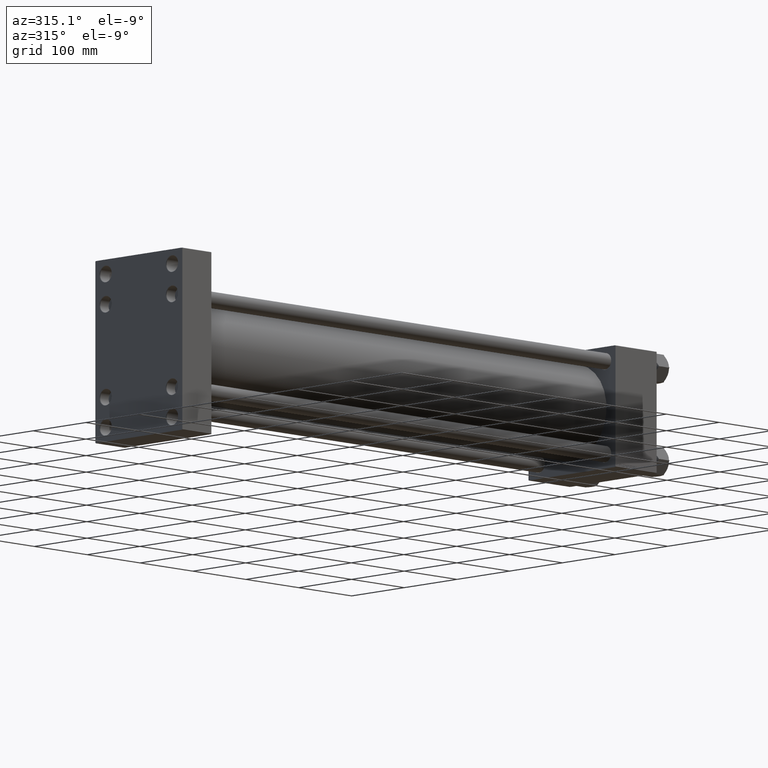
[diagram: clean part render]
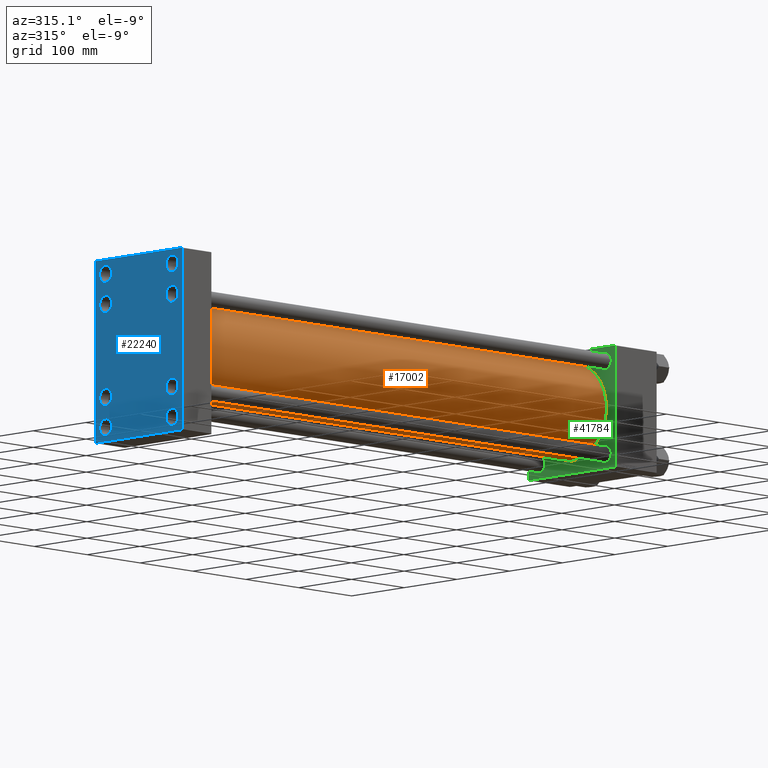
[diagram: same view with three faces highlighted in distinct colors, each labeled with its STEP entity id]
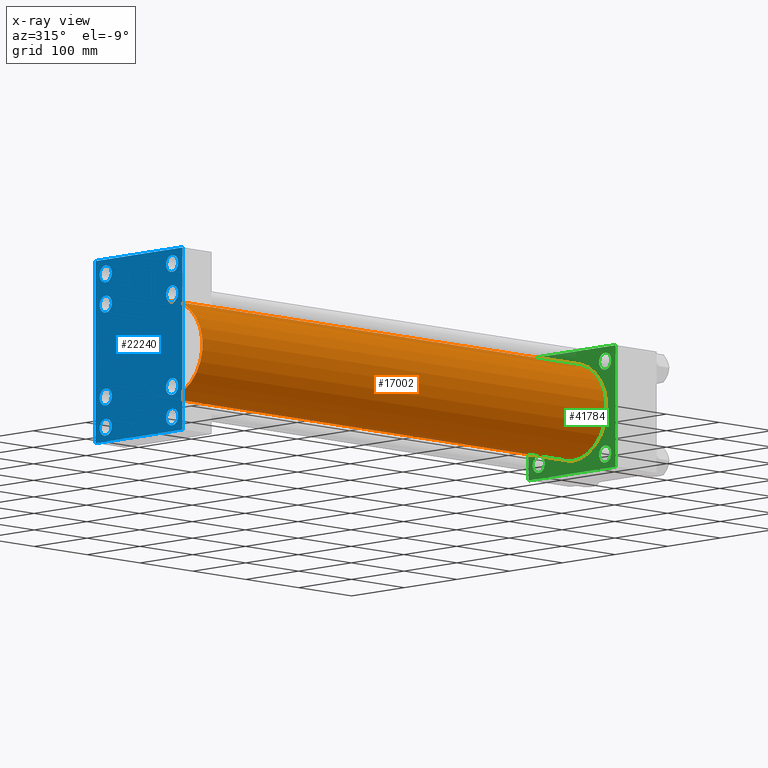
[diagram: x-ray of the same camera — body ghosted, the three highlighted faces saturated]
A machine part, auxiliary view with three faces highlighted in distinct colors.
The next image is the same camera in x-ray (body ghosted, the three faces saturated) — at least one of them is partly hidden behind the body in this view.
Their STEP definitions:

[orange] entity #17002 — the highlighted cylindrical surface (partial cylindrical patch) has radius 65.5 mm, axis along (-1, -0, -0).
#427 = CIRCLE ( 'NONE', #22564, 65.50000000000001421 ) ;
#3368 = EDGE_CURVE ( 'NONE', #4917, #25376, #31878, .T. ) ;
#4917 = VERTEX_POINT ( 'NONE', #19867 ) ;
#6007 = ORIENTED_EDGE ( 'NONE', *, *, #3368, .T. ) ;
#9825 = CARTESIAN_POINT ( 'NONE',  ( 55.00000000000004974, 5.419351320449954973E-15, -65.50000000000001421 ) ) ;
#9829 = ORIENTED_EDGE ( 'NONE', *, *, #45280, .F. ) ;
#9952 = DIRECTION ( 'NONE',  ( 0.000000000000000000, 0.000000000000000000, 1.000000000000000000 ) ) ;
#11100 = VECTOR ( 'NONE', #22832, 1000.000000000000000 ) ;
#11320 = DIRECTION ( 'NONE',  ( -1.000000000000000000, -0.000000000000000000, -0.000000000000000000 ) ) ;
#14198 = CARTESIAN_POINT ( 'NONE',  ( 819.0000000000001137, -2.602085213965210642E-15, 0.000000000000000000 ) ) ;
#17002 = ADVANCED_FACE ( 'NONE', ( #42652 ), #34428, .T. ) ;
#17794 = CARTESIAN_POINT ( 'NONE',  ( 819.0000000000001137, 5.419351320449954973E-15, -65.50000000000001421 ) ) ;
#17901 = EDGE_CURVE ( 'NONE', #4917, #37485, #427, .T. ) ;
#19867 = CARTESIAN_POINT ( 'NONE',  ( 819.0000000000001137, -2.602085213965210642E-15, 65.50000000000001421 ) ) ;
#20721 = ORIENTED_EDGE ( 'NONE', *, *, #42044, .T. ) ;
#22462 = DIRECTION ( 'NONE',  ( 0.000000000000000000, 0.000000000000000000, 1.000000000000000000 ) ) ;
#22564 = AXIS2_PLACEMENT_3D ( 'NONE', #43548, #39572, #47015 ) ;
#22832 = DIRECTION ( 'NONE',  ( -1.000000000000000000, -0.000000000000000000, -0.000000000000000000 ) ) ;
#23215 = CARTESIAN_POINT ( 'NONE',  ( 819.0000000000001137, 5.419351320449954973E-15, -65.50000000000001421 ) ) ;
#23362 = ORIENTED_EDGE ( 'NONE', *, *, #17901, .F. ) ;
#24205 = AXIS2_PLACEMENT_3D ( 'NONE', #14198, #46399, #9952 ) ;
#24311 = CIRCLE ( 'NONE', #48088, 65.50000000000001421 ) ;
#25376 = VERTEX_POINT ( 'NONE', #51143 ) ;
#28209 = VERTEX_POINT ( 'NONE', #9825 ) ;
#29655 = CARTESIAN_POINT ( 'NONE',  ( 55.00000000000004974, -2.602085213965210642E-15, 0.000000000000000000 ) ) ;
#31498 = EDGE_LOOP ( 'NONE', ( #9829, #23362, #6007, #20721 ) ) ;
#31878 = LINE ( 'NONE', #48103, #11100 ) ;
#34428 = CYLINDRICAL_SURFACE ( 'NONE', #24205, 65.50000000000001421 ) ;
#37485 = VERTEX_POINT ( 'NONE', #23215 ) ;
#39256 = LINE ( 'NONE', #17794, #46485 ) ;
#39572 = DIRECTION ( 'NONE',  ( 1.000000000000000000, 0.000000000000000000, 0.000000000000000000 ) ) ;
#42044 = EDGE_CURVE ( 'NONE', #25376, #28209, #24311, .T. ) ;
#42652 = FACE_OUTER_BOUND ( 'NONE', #31498, .T. ) ;
#43548 = CARTESIAN_POINT ( 'NONE',  ( 819.0000000000001137, -2.602085213965210642E-15, 0.000000000000000000 ) ) ;
#45280 = EDGE_CURVE ( 'NONE', #37485, #28209, #39256, .T. ) ;
#46399 = DIRECTION ( 'NONE',  ( -1.000000000000000000, -0.000000000000000000, -0.000000000000000000 ) ) ;
#46485 = VECTOR ( 'NONE', #11320, 1000.000000000000000 ) ;
#47015 = DIRECTION ( 'NONE',  ( 0.000000000000000000, 0.000000000000000000, -1.000000000000000000 ) ) ;
#48088 = AXIS2_PLACEMENT_3D ( 'NONE', #29655, #50404, #22462 ) ;
#48103 = CARTESIAN_POINT ( 'NONE',  ( 819.0000000000001137, -2.602085213965210642E-15, 65.50000000000001421 ) ) ;
#50404 = DIRECTION ( 'NONE',  ( 1.000000000000000000, -0.000000000000000000, 0.000000000000000000 ) ) ;
#51143 = CARTESIAN_POINT ( 'NONE',  ( 55.00000000000004974, -2.602085213965210642E-15, 65.50000000000001421 ) ) ;

[blue] entity #22240 — the highlighted planar face has unit normal (-1, 0, 0).
#639 = CARTESIAN_POINT ( 'NONE',  ( 0.000000000000000000, -63.00000000000002842, -115.4999999999999432 ) ) ;
#937 = EDGE_CURVE ( 'NONE', #40638, #21530, #25623, .T. ) ;
#1044 = EDGE_CURVE ( 'NONE', #20717, #40638, #20188, .T. ) ;
#1060 = DIRECTION ( 'NONE',  ( 1.000000000000000000, -0.000000000000000000, 0.000000000000000000 ) ) ;
#1153 = CIRCLE ( 'NONE', #47942, 11.49999999999995381 ) ;
#1301 = LINE ( 'NONE', #45474, #33417 ) ;
#1453 = DIRECTION ( 'NONE',  ( 1.000000000000000000, -0.000000000000000000, 0.000000000000000000 ) ) ;
#2074 = VERTEX_POINT ( 'NONE', #5888 ) ;
#2497 = EDGE_CURVE ( 'NONE', #36494, #29167, #40787, .T. ) ;
#3077 = LINE ( 'NONE', #31829, #5585 ) ;
#3177 = CARTESIAN_POINT ( 'NONE',  ( 0.000000000000000000, 62.99999999999998579, -103.9999999999999858 ) ) ;
#3527 = AXIS2_PLACEMENT_3D ( 'NONE', #9270, #5552, #16989 ) ;
#3604 = FACE_BOUND ( 'NONE', #45450, .T. ) ;
#4085 = DIRECTION ( 'NONE',  ( 1.000000000000000000, -0.000000000000000000, 0.000000000000000000 ) ) ;
#4604 = DIRECTION ( 'NONE',  ( 0.000000000000000000, 0.000000000000000000, 1.000000000000000000 ) ) ;
#4670 = CARTESIAN_POINT ( 'NONE',  ( 0.000000000000000000, 82.50000000000001421, 123.5000000000000284 ) ) ;
#4686 = ORIENTED_EDGE ( 'NONE', *, *, #10097, .T. ) ;
#5382 = CARTESIAN_POINT ( 'NONE',  ( 0.000000000000000000, 62.95000000000000284, -51.44999999999996732 ) ) ;
#5401 = DIRECTION ( 'NONE',  ( 0.000000000000000000, -1.000000000000000000, -1.682156097916903834E-16 ) ) ;
#5493 = EDGE_LOOP ( 'NONE', ( #51556, #22987 ) ) ;
#5552 = DIRECTION ( 'NONE',  ( 1.000000000000000000, -0.000000000000000000, 0.000000000000000000 ) ) ;
#5585 = VECTOR ( 'NONE', #11602, 1000.000000000000000 ) ;
#5888 = CARTESIAN_POINT ( 'NONE',  ( 0.000000000000000000, -63.00000000000002842, -92.50000000000002842 ) ) ;
#6137 = EDGE_CURVE ( 'NONE', #26890, #2074, #17971, .T. ) ;
#6234 = CIRCLE ( 'NONE', #7072, 11.50000000000003730 ) ;
#6366 = DIRECTION ( 'NONE',  ( 1.000000000000000000, -0.000000000000000000, 0.000000000000000000 ) ) ;
#6650 = CIRCLE ( 'NONE', #50823, 11.50000000000003730 ) ;
#6710 = VERTEX_POINT ( 'NONE', #52625 ) ;
#6738 = ORIENTED_EDGE ( 'NONE', *, *, #24462, .F. ) ;
#6938 = DIRECTION ( 'NONE',  ( 0.000000000000000000, 0.000000000000000000, 1.000000000000000000 ) ) ;
#6991 = ORIENTED_EDGE ( 'NONE', *, *, #50077, .T. ) ;
#7072 = AXIS2_PLACEMENT_3D ( 'NONE', #32017, #20294, #24034 ) ;
#7495 = AXIS2_PLACEMENT_3D ( 'NONE', #48523, #4085, #4604 ) ;
#8309 = CIRCLE ( 'NONE', #33787, 11.49999999999995381 ) ;
#9262 = EDGE_LOOP ( 'NONE', ( #41092, #6991 ) ) ;
#9270 = CARTESIAN_POINT ( 'NONE',  ( 0.000000000000000000, -63.00000000000002842, -103.9999999999999858 ) ) ;
#9646 = ORIENTED_EDGE ( 'NONE', *, *, #32894, .T. ) ;
#9701 = CARTESIAN_POINT ( 'NONE',  ( 0.000000000000000000, -62.94999999999998153, -51.44999999999998153 ) ) ;
#9736 = DIRECTION ( 'NONE',  ( 1.000000000000000000, -0.000000000000000000, 0.000000000000000000 ) ) ;
#10097 = EDGE_CURVE ( 'NONE', #39812, #10649, #1301, .T. ) ;
#10394 = EDGE_LOOP ( 'NONE', ( #43292, #9646 ) ) ;
#10649 = VERTEX_POINT ( 'NONE', #30133 ) ;
#10824 = AXIS2_PLACEMENT_3D ( 'NONE', #15065, #27312, #44055 ) ;
#11075 = FACE_BOUND ( 'NONE', #43809, .T. ) ;
#11153 = CARTESIAN_POINT ( 'NONE',  ( 0.000000000000000000, 62.95000000000000284, 74.44999999999998863 ) ) ;
#11602 = DIRECTION ( 'NONE',  ( 0.000000000000000000, 0.7071067811865672237, -0.7071067811865279218 ) ) ;
#12265 = AXIS2_PLACEMENT_3D ( 'NONE', #23434, #32192, #6938 ) ;
#12371 = CARTESIAN_POINT ( 'NONE',  ( 0.000000000000000000, 62.99999999999998579, -92.50000000000002842 ) ) ;
#12716 = AXIS2_PLACEMENT_3D ( 'NONE', #32832, #25641, #41332 ) ;
#12783 = CARTESIAN_POINT ( 'NONE',  ( 0.000000000000000000, -63.00000000000002842, 104.0000000000000142 ) ) ;
#13346 = ORIENTED_EDGE ( 'NONE', *, *, #25125, .T. ) ;
#14020 = CIRCLE ( 'NONE', #51386, 11.50000000000003730 ) ;
#14945 = CARTESIAN_POINT ( 'NONE',  ( 0.000000000000000000, -82.49999999999998579, 123.5000000000000000 ) ) ;
#15065 = CARTESIAN_POINT ( 'NONE',  ( 0.000000000000000000, 0.000000000000000000, 0.000000000000000000 ) ) ;
#15069 = EDGE_CURVE ( 'NONE', #2074, #26890, #1153, .T. ) ;
#15111 = AXIS2_PLACEMENT_3D ( 'NONE', #3177, #19421, #39901 ) ;
#15808 = EDGE_CURVE ( 'NONE', #32725, #37286, #40297, .T. ) ;
#15941 = CARTESIAN_POINT ( 'NONE',  ( 0.000000000000000000, 102.7500000000000142, -102.7500000000000142 ) ) ;
#16079 = VECTOR ( 'NONE', #5401, 1000.000000000000000 ) ;
#16184 = CIRCLE ( 'NONE', #20434, 11.49999999999995381 ) ;
#16195 = DIRECTION ( 'NONE',  ( 1.000000000000000000, -0.000000000000000000, 0.000000000000000000 ) ) ;
#16629 = EDGE_CURVE ( 'NONE', #45343, #40943, #46257, .T. ) ;
#16811 = VECTOR ( 'NONE', #37380, 1000.000000000000000 ) ;
#16930 = DIRECTION ( 'NONE',  ( 1.000000000000000000, -0.000000000000000000, 0.000000000000000000 ) ) ;
#16989 = DIRECTION ( 'NONE',  ( 0.000000000000000000, 0.000000000000000000, 1.000000000000000000 ) ) ;
#17314 = AXIS2_PLACEMENT_3D ( 'NONE', #21436, #17451, #29684 ) ;
#17441 = CARTESIAN_POINT ( 'NONE',  ( 0.000000000000000000, 62.95000000000000284, -62.95000000000000284 ) ) ;
#17451 = DIRECTION ( 'NONE',  ( 1.000000000000000000, -0.000000000000000000, 0.000000000000000000 ) ) ;
#17717 = EDGE_CURVE ( 'NONE', #6710, #26703, #14020, .T. ) ;
#17839 = EDGE_CURVE ( 'NONE', #43264, #20717, #49699, .T. ) ;
#17971 = CIRCLE ( 'NONE', #3527, 11.49999999999995381 ) ;
#18237 = ORIENTED_EDGE ( 'NONE', *, *, #937, .T. ) ;
#18420 = LINE ( 'NONE', #14945, #25329 ) ;
#18437 = EDGE_CURVE ( 'NONE', #21530, #19627, #50889, .T. ) ;
#19331 = CIRCLE ( 'NONE', #37164, 11.50000000000003730 ) ;
#19366 = AXIS2_PLACEMENT_3D ( 'NONE', #39634, #34590, #43085 ) ;
#19421 = DIRECTION ( 'NONE',  ( 1.000000000000000000, -0.000000000000000000, 0.000000000000000000 ) ) ;
#19627 = VERTEX_POINT ( 'NONE', #39715 ) ;
#19850 = FACE_OUTER_BOUND ( 'NONE', #25774, .T. ) ;
#19953 = EDGE_LOOP ( 'NONE', ( #50531, #48879 ) ) ;
#19984 = VECTOR ( 'NONE', #45697, 1000.000000000000000 ) ;
#20020 = AXIS2_PLACEMENT_3D ( 'NONE', #39076, #6366, #22321 ) ;
#20188 = LINE ( 'NONE', #15941, #28875 ) ;
#20294 = DIRECTION ( 'NONE',  ( 1.000000000000000000, -0.000000000000000000, 0.000000000000000000 ) ) ;
#20434 = AXIS2_PLACEMENT_3D ( 'NONE', #42212, #45412, #26003 ) ;
#20717 = VERTEX_POINT ( 'NONE', #27562 ) ;
#21016 = DIRECTION ( 'NONE',  ( -0.000000000000000000, 0.7071067811865279218, 0.7071067811865672237 ) ) ;
#21436 = CARTESIAN_POINT ( 'NONE',  ( 0.000000000000000000, 62.99999999999998579, -103.9999999999999858 ) ) ;
#21530 = VERTEX_POINT ( 'NONE', #37098 ) ;
#22240 = ADVANCED_FACE ( 'NONE', ( #40063, #3604, #47790, #26789, #11075, #35023, #22789, #31306, #19850 ), #36072, .T. ) ;
#22321 = DIRECTION ( 'NONE',  ( 0.000000000000000000, 0.000000000000000000, 1.000000000000000000 ) ) ;
#22789 = FACE_BOUND ( 'NONE', #19953, .T. ) ;
#22987 = ORIENTED_EDGE ( 'NONE', *, *, #6137, .T. ) ;
#23049 = CARTESIAN_POINT ( 'NONE',  ( 0.000000000000000000, -62.94999999999998153, 74.45000000000005969 ) ) ;
#23434 = CARTESIAN_POINT ( 'NONE',  ( 0.000000000000000000, -63.00000000000002842, 104.0000000000000142 ) ) ;
#24034 = DIRECTION ( 'NONE',  ( 0.000000000000000000, 0.000000000000000000, 1.000000000000000000 ) ) ;
#24212 = EDGE_LOOP ( 'NONE', ( #48752, #35731 ) ) ;
#24291 = DIRECTION ( 'NONE',  ( 1.000000000000000000, -0.000000000000000000, 0.000000000000000000 ) ) ;
#24462 = EDGE_CURVE ( 'NONE', #39812, #19627, #18420, .T. ) ;
#24923 = EDGE_CURVE ( 'NONE', #42610, #34487, #6650, .T. ) ;
#25125 = EDGE_CURVE ( 'NONE', #26703, #6710, #30423, .T. ) ;
#25329 = VECTOR ( 'NONE', #39162, 1000.000000000000000 ) ;
#25442 = DIRECTION ( 'NONE',  ( 0.000000000000000000, 0.000000000000000000, 1.000000000000000000 ) ) ;
#25623 = LINE ( 'NONE', #46631, #16079 ) ;
#25641 = DIRECTION ( 'NONE',  ( 1.000000000000000000, -0.000000000000000000, 0.000000000000000000 ) ) ;
#25746 = VERTEX_POINT ( 'NONE', #46471 ) ;
#25774 = EDGE_LOOP ( 'NONE', ( #29840, #43566, #18237, #28214, #6738, #4686, #30214, #31992 ) ) ;
#25915 = VERTEX_POINT ( 'NONE', #12371 ) ;
#26003 = DIRECTION ( 'NONE',  ( 0.000000000000000000, 0.000000000000000000, 1.000000000000000000 ) ) ;
#26672 = EDGE_CURVE ( 'NONE', #45875, #41896, #16184, .T. ) ;
#26703 = VERTEX_POINT ( 'NONE', #23049 ) ;
#26789 = FACE_BOUND ( 'NONE', #24212, .T. ) ;
#26890 = VERTEX_POINT ( 'NONE', #639 ) ;
#27024 = CARTESIAN_POINT ( 'NONE',  ( 0.000000000000000000, -63.00000000000002842, 92.50000000000005684 ) ) ;
#27102 = EDGE_LOOP ( 'NONE', ( #48351, #48186 ) ) ;
#27312 = DIRECTION ( 'NONE',  ( -1.000000000000000000, 0.000000000000000000, -0.000000000000000000 ) ) ;
#27562 = CARTESIAN_POINT ( 'NONE',  ( 0.000000000000000000, 82.50000000000001421, -123.0000000000000000 ) ) ;
#27759 = CARTESIAN_POINT ( 'NONE',  ( 0.000000000000000000, 62.95000000000000284, -62.95000000000000284 ) ) ;
#28214 = ORIENTED_EDGE ( 'NONE', *, *, #18437, .T. ) ;
#28648 = CARTESIAN_POINT ( 'NONE',  ( 0.000000000000000000, -62.94999999999998153, -62.95000000000001705 ) ) ;
#28695 = DIRECTION ( 'NONE',  ( -0.000000000000000000, -0.7071067811865474617, -0.7071067811865474617 ) ) ;
#28875 = VECTOR ( 'NONE', #28695, 1000.000000000000114 ) ;
#29167 = VERTEX_POINT ( 'NONE', #11153 ) ;
#29479 = CARTESIAN_POINT ( 'NONE',  ( 0.000000000000000000, 82.50000000000001421, 123.5000000000000284 ) ) ;
#29684 = DIRECTION ( 'NONE',  ( 0.000000000000000000, 0.000000000000000000, 1.000000000000000000 ) ) ;
#29840 = ORIENTED_EDGE ( 'NONE', *, *, #17839, .T. ) ;
#30133 = CARTESIAN_POINT ( 'NONE',  ( 0.000000000000000000, -81.99999999999998579, 123.5000000000000000 ) ) ;
#30214 = ORIENTED_EDGE ( 'NONE', *, *, #50639, .F. ) ;
#30423 = CIRCLE ( 'NONE', #7495, 11.50000000000003730 ) ;
#30729 = CARTESIAN_POINT ( 'NONE',  ( 0.000000000000000000, -62.94999999999998153, -74.45000000000005969 ) ) ;
#30761 = CARTESIAN_POINT ( 'NONE',  ( 0.000000000000000000, -63.00000000000002842, 115.4999999999999574 ) ) ;
#31306 = FACE_BOUND ( 'NONE', #27102, .T. ) ;
#31829 = CARTESIAN_POINT ( 'NONE',  ( 0.000000000000000000, 102.7499999999977121, 102.7500000000034390 ) ) ;
#31839 = AXIS2_PLACEMENT_3D ( 'NONE', #28648, #16930, #25442 ) ;
#31992 = ORIENTED_EDGE ( 'NONE', *, *, #41679, .T. ) ;
#32017 = CARTESIAN_POINT ( 'NONE',  ( 0.000000000000000000, -62.94999999999998153, -62.95000000000001705 ) ) ;
#32192 = DIRECTION ( 'NONE',  ( 1.000000000000000000, -0.000000000000000000, 0.000000000000000000 ) ) ;
#32417 = DIRECTION ( 'NONE',  ( 0.000000000000000000, 0.000000000000000000, 1.000000000000000000 ) ) ;
#32725 = VERTEX_POINT ( 'NONE', #9701 ) ;
#32832 = CARTESIAN_POINT ( 'NONE',  ( 0.000000000000000000, 62.95000000000000284, 62.95000000000000284 ) ) ;
#32894 = EDGE_CURVE ( 'NONE', #37286, #32725, #6234, .T. ) ;
#33010 = DIRECTION ( 'NONE',  ( 0.000000000000000000, 0.000000000000000000, 1.000000000000000000 ) ) ;
#33417 = VECTOR ( 'NONE', #21016, 1000.000000000000000 ) ;
#33787 = AXIS2_PLACEMENT_3D ( 'NONE', #12783, #1060, #33010 ) ;
#33936 = LINE ( 'NONE', #4670, #16811 ) ;
#34294 = CARTESIAN_POINT ( 'NONE',  ( 0.000000000000000000, 82.00000000000004263, -123.4999999999999716 ) ) ;
#34405 = DIRECTION ( 'NONE',  ( 0.000000000000000000, -0.7071067811865474617, 0.7071067811865474617 ) ) ;
#34487 = VERTEX_POINT ( 'NONE', #50554 ) ;
#34590 = DIRECTION ( 'NONE',  ( 1.000000000000000000, -0.000000000000000000, 0.000000000000000000 ) ) ;
#35023 = FACE_BOUND ( 'NONE', #10394, .T. ) ;
#35282 = CIRCLE ( 'NONE', #20020, 11.49999999999998224 ) ;
#35731 = ORIENTED_EDGE ( 'NONE', *, *, #37047, .T. ) ;
#36072 = PLANE ( 'NONE',  #10824 ) ;
#36407 = CARTESIAN_POINT ( 'NONE',  ( 0.000000000000000000, -62.94999999999998153, 62.95000000000001705 ) ) ;
#36494 = VERTEX_POINT ( 'NONE', #51339 ) ;
#37047 = EDGE_CURVE ( 'NONE', #25746, #25915, #39428, .T. ) ;
#37098 = CARTESIAN_POINT ( 'NONE',  ( 0.000000000000000000, -81.99999999999992895, -123.5000000000000000 ) ) ;
#37164 = AXIS2_PLACEMENT_3D ( 'NONE', #27759, #24291, #43970 ) ;
#37286 = VERTEX_POINT ( 'NONE', #30729 ) ;
#37380 = DIRECTION ( 'NONE',  ( 0.000000000000000000, -1.000000000000000000, -1.682156097916903834E-16 ) ) ;
#37642 = DIRECTION ( 'NONE',  ( 0.000000000000000000, 0.000000000000000000, 1.000000000000000000 ) ) ;
#38042 = CIRCLE ( 'NONE', #15111, 11.49999999999995381 ) ;
#38462 = CARTESIAN_POINT ( 'NONE',  ( 0.000000000000000000, -82.49999999999998579, 122.9999999999999716 ) ) ;
#39076 = CARTESIAN_POINT ( 'NONE',  ( 0.000000000000000000, 62.95000000000000284, 62.95000000000000284 ) ) ;
#39155 = CARTESIAN_POINT ( 'NONE',  ( 0.000000000000000000, 82.50000000000001421, 123.0000000000000284 ) ) ;
#39162 = DIRECTION ( 'NONE',  ( 0.000000000000000000, 0.000000000000000000, -1.000000000000000000 ) ) ;
#39428 = CIRCLE ( 'NONE', #17314, 11.49999999999995381 ) ;
#39634 = CARTESIAN_POINT ( 'NONE',  ( 0.000000000000000000, 62.99999999999998579, 104.0000000000000142 ) ) ;
#39715 = CARTESIAN_POINT ( 'NONE',  ( 0.000000000000000000, -82.49999999999998579, -122.9999999999999432 ) ) ;
#39812 = VERTEX_POINT ( 'NONE', #38462 ) ;
#39901 = DIRECTION ( 'NONE',  ( 0.000000000000000000, 0.000000000000000000, 1.000000000000000000 ) ) ;
#39966 = CARTESIAN_POINT ( 'NONE',  ( 0.000000000000000000, 81.99999999999998579, 123.5000000000000284 ) ) ;
#40063 = FACE_BOUND ( 'NONE', #9262, .T. ) ;
#40297 = CIRCLE ( 'NONE', #31839, 11.50000000000003730 ) ;
#40638 = VERTEX_POINT ( 'NONE', #34294 ) ;
#40787 = CIRCLE ( 'NONE', #12716, 11.49999999999998224 ) ;
#40943 = VERTEX_POINT ( 'NONE', #30761 ) ;
#41092 = ORIENTED_EDGE ( 'NONE', *, *, #26672, .T. ) ;
#41259 = EDGE_CURVE ( 'NONE', #29167, #36494, #35282, .T. ) ;
#41332 = DIRECTION ( 'NONE',  ( 0.000000000000000000, 0.000000000000000000, 1.000000000000000000 ) ) ;
#41679 = EDGE_CURVE ( 'NONE', #44041, #43264, #3077, .T. ) ;
#41896 = VERTEX_POINT ( 'NONE', #45605 ) ;
#42180 = DIRECTION ( 'NONE',  ( 0.000000000000000000, 0.000000000000000000, 1.000000000000000000 ) ) ;
#42212 = CARTESIAN_POINT ( 'NONE',  ( 0.000000000000000000, 62.99999999999998579, 104.0000000000000142 ) ) ;
#42610 = VERTEX_POINT ( 'NONE', #5382 ) ;
#43085 = DIRECTION ( 'NONE',  ( 0.000000000000000000, 0.000000000000000000, 1.000000000000000000 ) ) ;
#43224 = CARTESIAN_POINT ( 'NONE',  ( 0.000000000000000000, -63.00000000000002842, -103.9999999999999858 ) ) ;
#43264 = VERTEX_POINT ( 'NONE', #39155 ) ;
#43292 = ORIENTED_EDGE ( 'NONE', *, *, #15808, .T. ) ;
#43423 = CARTESIAN_POINT ( 'NONE',  ( 0.000000000000000000, -102.7499999999999716, -102.7499999999999716 ) ) ;
#43566 = ORIENTED_EDGE ( 'NONE', *, *, #1044, .T. ) ;
#43809 = EDGE_LOOP ( 'NONE', ( #13346, #47389 ) ) ;
#43970 = DIRECTION ( 'NONE',  ( 0.000000000000000000, 0.000000000000000000, 1.000000000000000000 ) ) ;
#44041 = VERTEX_POINT ( 'NONE', #39966 ) ;
#44055 = DIRECTION ( 'NONE',  ( -0.000000000000000000, 0.000000000000000000, 1.000000000000000000 ) ) ;
#45259 = CARTESIAN_POINT ( 'NONE',  ( 0.000000000000000000, 62.99999999999998579, 115.4999999999999574 ) ) ;
#45343 = VERTEX_POINT ( 'NONE', #27024 ) ;
#45412 = DIRECTION ( 'NONE',  ( 1.000000000000000000, -0.000000000000000000, 0.000000000000000000 ) ) ;
#45450 = EDGE_LOOP ( 'NONE', ( #52216, #52160 ) ) ;
#45474 = CARTESIAN_POINT ( 'NONE',  ( -0.000000000000000000, -102.7500000000022737, 102.7499999999965610 ) ) ;
#45605 = CARTESIAN_POINT ( 'NONE',  ( 0.000000000000000000, 62.99999999999998579, 92.50000000000005684 ) ) ;
#45697 = DIRECTION ( 'NONE',  ( 0.000000000000000000, 0.000000000000000000, -1.000000000000000000 ) ) ;
#45701 = CIRCLE ( 'NONE', #19366, 11.49999999999995381 ) ;
#45820 = EDGE_CURVE ( 'NONE', #34487, #42610, #19331, .T. ) ;
#45875 = VERTEX_POINT ( 'NONE', #45259 ) ;
#46257 = CIRCLE ( 'NONE', #12265, 11.49999999999995381 ) ;
#46374 = EDGE_CURVE ( 'NONE', #40943, #45343, #8309, .T. ) ;
#46471 = CARTESIAN_POINT ( 'NONE',  ( 0.000000000000000000, 62.99999999999998579, -115.4999999999999432 ) ) ;
#46629 = EDGE_CURVE ( 'NONE', #25915, #25746, #38042, .T. ) ;
#46631 = CARTESIAN_POINT ( 'NONE',  ( 0.000000000000000000, 82.50000000000001421, -123.4999999999999716 ) ) ;
#47389 = ORIENTED_EDGE ( 'NONE', *, *, #17717, .T. ) ;
#47790 = FACE_BOUND ( 'NONE', #5493, .T. ) ;
#47942 = AXIS2_PLACEMENT_3D ( 'NONE', #43224, #9736, #42180 ) ;
#48186 = ORIENTED_EDGE ( 'NONE', *, *, #2497, .T. ) ;
#48351 = ORIENTED_EDGE ( 'NONE', *, *, #41259, .T. ) ;
#48523 = CARTESIAN_POINT ( 'NONE',  ( 0.000000000000000000, -62.94999999999998153, 62.95000000000001705 ) ) ;
#48752 = ORIENTED_EDGE ( 'NONE', *, *, #46629, .T. ) ;
#48879 = ORIENTED_EDGE ( 'NONE', *, *, #45820, .T. ) ;
#49699 = LINE ( 'NONE', #29479, #19984 ) ;
#49748 = VECTOR ( 'NONE', #34405, 1000.000000000000114 ) ;
#50077 = EDGE_CURVE ( 'NONE', #41896, #45875, #45701, .T. ) ;
#50531 = ORIENTED_EDGE ( 'NONE', *, *, #24923, .T. ) ;
#50554 = CARTESIAN_POINT ( 'NONE',  ( 0.000000000000000000, 62.95000000000000284, -74.45000000000004547 ) ) ;
#50639 = EDGE_CURVE ( 'NONE', #44041, #10649, #33936, .T. ) ;
#50823 = AXIS2_PLACEMENT_3D ( 'NONE', #17441, #1453, #37642 ) ;
#50889 = LINE ( 'NONE', #43423, #49748 ) ;
#51339 = CARTESIAN_POINT ( 'NONE',  ( 0.000000000000000000, 62.95000000000000284, 51.45000000000002416 ) ) ;
#51386 = AXIS2_PLACEMENT_3D ( 'NONE', #36407, #16195, #32417 ) ;
#51556 = ORIENTED_EDGE ( 'NONE', *, *, #15069, .T. ) ;
#52160 = ORIENTED_EDGE ( 'NONE', *, *, #16629, .T. ) ;
#52216 = ORIENTED_EDGE ( 'NONE', *, *, #46374, .T. ) ;
#52625 = CARTESIAN_POINT ( 'NONE',  ( 0.000000000000000000, -62.94999999999998153, 51.44999999999998153 ) ) ;

[green] entity #41784 — the highlighted planar face has unit normal (-1, 0, 0).
#281 = CARTESIAN_POINT ( 'NONE',  ( 819.0000000000001137, 62.95000000000000284, 62.95000000000000284 ) ) ;
#326 = VERTEX_POINT ( 'NONE', #35580 ) ;
#427 = CIRCLE ( 'NONE', #22564, 65.50000000000001421 ) ;
#641 = EDGE_CURVE ( 'NONE', #1318, #326, #11569, .T. ) ;
#1198 = VERTEX_POINT ( 'NONE', #45698 ) ;
#1318 = VERTEX_POINT ( 'NONE', #27862 ) ;
#1949 = EDGE_CURVE ( 'NONE', #44191, #19369, #39056, .T. ) ;
#2492 = LINE ( 'NONE', #38426, #15658 ) ;
#2985 = VECTOR ( 'NONE', #43385, 1000.000000000000000 ) ;
#3024 = CIRCLE ( 'NONE', #41272, 11.50000000000006573 ) ;
#3545 = DIRECTION ( 'NONE',  ( 1.000000000000000000, 0.000000000000000000, -0.000000000000000000 ) ) ;
#3565 = DIRECTION ( 'NONE',  ( 0.000000000000000000, -1.000000000000000000, -1.682156097916904081E-16 ) ) ;
#3589 = CARTESIAN_POINT ( 'NONE',  ( 819.0000000000001137, 62.95000000000000284, -74.45000000000007390 ) ) ;
#3799 = CARTESIAN_POINT ( 'NONE',  ( 819.0000000000001137, -62.94999999999998153, -51.44999999999995310 ) ) ;
#4028 = DIRECTION ( 'NONE',  ( 0.000000000000000000, -1.682156097916903834E-16, -1.000000000000000000 ) ) ;
#4105 = DIRECTION ( 'NONE',  ( 0.000000000000000000, 0.000000000000000000, 1.000000000000000000 ) ) ;
#4126 = FACE_BOUND ( 'NONE', #50726, .T. ) ;
#4424 = ORIENTED_EDGE ( 'NONE', *, *, #15801, .T. ) ;
#4449 = ORIENTED_EDGE ( 'NONE', *, *, #7171, .T. ) ;
#4890 = ORIENTED_EDGE ( 'NONE', *, *, #18925, .T. ) ;
#4917 = VERTEX_POINT ( 'NONE', #19867 ) ;
#5430 = ORIENTED_EDGE ( 'NONE', *, *, #35912, .T. ) ;
#5550 = DIRECTION ( 'NONE',  ( -0.000000000000000000, 0.7071067811865573427, 0.7071067811865376918 ) ) ;
#5712 = VERTEX_POINT ( 'NONE', #16530 ) ;
#5951 = EDGE_CURVE ( 'NONE', #1198, #25959, #48546, .T. ) ;
#6353 = AXIS2_PLACEMENT_3D ( 'NONE', #48601, #12151, #48867 ) ;
#6768 = DIRECTION ( 'NONE',  ( 0.000000000000000000, -0.7071067811864788499, 0.7071067811866161845 ) ) ;
#7171 = EDGE_CURVE ( 'NONE', #25959, #1198, #13752, .T. ) ;
#7302 = AXIS2_PLACEMENT_3D ( 'NONE', #45344, #41354, #36579 ) ;
#8022 = AXIS2_PLACEMENT_3D ( 'NONE', #32575, #28591, #4105 ) ;
#9274 = VECTOR ( 'NONE', #3565, 1000.000000000000000 ) ;
#9695 = DIRECTION ( 'NONE',  ( 0.000000000000000000, 0.000000000000000000, 1.000000000000000000 ) ) ;
#10130 = DIRECTION ( 'NONE',  ( 0.000000000000000000, 0.000000000000000000, 1.000000000000000000 ) ) ;
#10677 = LINE ( 'NONE', #10940, #2985 ) ;
#10940 = CARTESIAN_POINT ( 'NONE',  ( 819.0000000000001137, 82.50000000000001421, -82.50000000000002842 ) ) ;
#11569 = LINE ( 'NONE', #44018, #9274 ) ;
#11954 = DIRECTION ( 'NONE',  ( 0.000000000000000000, 0.000000000000000000, 1.000000000000000000 ) ) ;
#12151 = DIRECTION ( 'NONE',  ( 1.000000000000000000, 0.000000000000000000, -0.000000000000000000 ) ) ;
#12520 = CIRCLE ( 'NONE', #38892, 11.50000000000006573 ) ;
#12582 = DIRECTION ( 'NONE',  ( 0.000000000000000000, 0.000000000000000000, 1.000000000000000000 ) ) ;
#12784 = ORIENTED_EDGE ( 'NONE', *, *, #34716, .T. ) ;
#12791 = DIRECTION ( 'NONE',  ( 0.000000000000000000, 0.000000000000000000, 1.000000000000000000 ) ) ;
#12834 = EDGE_CURVE ( 'NONE', #43127, #28248, #42718, .T. ) ;
#12909 = EDGE_LOOP ( 'NONE', ( #4890, #39180 ) ) ;
#12973 = VECTOR ( 'NONE', #4028, 1000.000000000000000 ) ;
#13051 = LINE ( 'NONE', #20517, #12973 ) ;
#13276 = ORIENTED_EDGE ( 'NONE', *, *, #1949, .T. ) ;
#13338 = CARTESIAN_POINT ( 'NONE',  ( 819.0000000000001137, 82.50000000000001421, 81.99999999999994316 ) ) ;
#13366 = CARTESIAN_POINT ( 'NONE',  ( 819.0000000000001137, -62.94999999999998153, -62.95000000000001705 ) ) ;
#13635 = DIRECTION ( 'NONE',  ( 1.000000000000000000, 0.000000000000000000, -0.000000000000000000 ) ) ;
#13752 = CIRCLE ( 'NONE', #46871, 11.50000000000006573 ) ;
#13783 = CARTESIAN_POINT ( 'NONE',  ( 819.0000000000001137, -82.24999999999880629, 82.25000000000108002 ) ) ;
#13892 = EDGE_LOOP ( 'NONE', ( #33328, #45253 ) ) ;
#14203 = CARTESIAN_POINT ( 'NONE',  ( 819.0000000000001137, -62.94999999999998153, 62.95000000000001705 ) ) ;
#14627 = CARTESIAN_POINT ( 'NONE',  ( 819.0000000000001137, 62.95000000000000284, -62.95000000000000284 ) ) ;
#15045 = ORIENTED_EDGE ( 'NONE', *, *, #24214, .T. ) ;
#15658 = VECTOR ( 'NONE', #6768, 1000.000000000000000 ) ;
#15801 = EDGE_CURVE ( 'NONE', #21058, #32942, #47977, .T. ) ;
#16054 = EDGE_CURVE ( 'NONE', #19369, #44191, #42835, .T. ) ;
#16061 = CARTESIAN_POINT ( 'NONE',  ( 819.0000000000001137, 62.95000000000000284, -62.95000000000000284 ) ) ;
#16117 = AXIS2_PLACEMENT_3D ( 'NONE', #281, #16797, #12791 ) ;
#16530 = CARTESIAN_POINT ( 'NONE',  ( 819.0000000000001137, 82.50000000000001421, -82.00000000000019895 ) ) ;
#16797 = DIRECTION ( 'NONE',  ( 1.000000000000000000, 0.000000000000000000, -0.000000000000000000 ) ) ;
#17901 = EDGE_CURVE ( 'NONE', #4917, #37485, #427, .T. ) ;
#18415 = VECTOR ( 'NONE', #5550, 1000.000000000000114 ) ;
#18457 = DIRECTION ( 'NONE',  ( 1.000000000000000000, 0.000000000000000000, -0.000000000000000000 ) ) ;
#18805 = LINE ( 'NONE', #23342, #30995 ) ;
#18925 = EDGE_CURVE ( 'NONE', #28248, #43127, #3024, .T. ) ;
#18926 = EDGE_CURVE ( 'NONE', #37485, #4917, #49791, .T. ) ;
#19079 = DIRECTION ( 'NONE',  ( 0.000000000000000000, 0.7071067811865474617, -0.7071067811865474617 ) ) ;
#19369 = VERTEX_POINT ( 'NONE', #35453 ) ;
#19867 = CARTESIAN_POINT ( 'NONE',  ( 819.0000000000001137, -2.602085213965210642E-15, 65.50000000000001421 ) ) ;
#20258 = ORIENTED_EDGE ( 'NONE', *, *, #5951, .T. ) ;
#20517 = CARTESIAN_POINT ( 'NONE',  ( 819.0000000000001137, -82.49999999999997158, 82.49999999999997158 ) ) ;
#20868 = VERTEX_POINT ( 'NONE', #13338 ) ;
#21058 = VERTEX_POINT ( 'NONE', #28983 ) ;
#21526 = CARTESIAN_POINT ( 'NONE',  ( 819.0000000000001137, -62.94999999999998153, 74.45000000000008811 ) ) ;
#21841 = VERTEX_POINT ( 'NONE', #47718 ) ;
#22442 = CARTESIAN_POINT ( 'NONE',  ( 819.0000000000001137, 82.50000000000001421, 82.50000000000000000 ) ) ;
#22564 = AXIS2_PLACEMENT_3D ( 'NONE', #43548, #39572, #47015 ) ;
#23188 = ORIENTED_EDGE ( 'NONE', *, *, #48359, .T. ) ;
#23215 = CARTESIAN_POINT ( 'NONE',  ( 819.0000000000001137, 5.419351320449954973E-15, -65.50000000000001421 ) ) ;
#23342 = CARTESIAN_POINT ( 'NONE',  ( 819.0000000000001137, 82.24999999999997158, 82.24999999999997158 ) ) ;
#23436 = LINE ( 'NONE', #22442, #42368 ) ;
#24214 = EDGE_CURVE ( 'NONE', #32942, #21058, #12520, .T. ) ;
#24618 = FACE_BOUND ( 'NONE', #12909, .T. ) ;
#25239 = LINE ( 'NONE', #13783, #18415 ) ;
#25610 = AXIS2_PLACEMENT_3D ( 'NONE', #14627, #48156, #11954 ) ;
#25959 = VERTEX_POINT ( 'NONE', #3589 ) ;
#26105 = CARTESIAN_POINT ( 'NONE',  ( 819.0000000000001137, -62.94999999999998153, 62.95000000000001705 ) ) ;
#27163 = CARTESIAN_POINT ( 'NONE',  ( 819.0000000000001137, -82.49999999999997158, 81.99999999999991473 ) ) ;
#27410 = CARTESIAN_POINT ( 'NONE',  ( 819.0000000000001137, -82.00000000000015632, -82.50000000000002842 ) ) ;
#27862 = CARTESIAN_POINT ( 'NONE',  ( 819.0000000000001137, 81.99999999999995737, 82.50000000000000000 ) ) ;
#28248 = VERTEX_POINT ( 'NONE', #21526 ) ;
#28530 = AXIS2_PLACEMENT_3D ( 'NONE', #38325, #52066, #30871 ) ;
#28591 = DIRECTION ( 'NONE',  ( 1.000000000000000000, 0.000000000000000000, -0.000000000000000000 ) ) ;
#28666 = EDGE_LOOP ( 'NONE', ( #13276, #46642 ) ) ;
#28983 = CARTESIAN_POINT ( 'NONE',  ( 819.0000000000001137, -62.94999999999998153, -74.45000000000008811 ) ) ;
#29073 = EDGE_LOOP ( 'NONE', ( #40589, #12784, #34306, #42382, #44825, #5430, #23188, #46023 ) ) ;
#30871 = DIRECTION ( 'NONE',  ( 0.000000000000000000, 0.000000000000000000, -1.000000000000000000 ) ) ;
#30995 = VECTOR ( 'NONE', #19079, 1000.000000000000114 ) ;
#31192 = EDGE_CURVE ( 'NONE', #40357, #21841, #13051, .T. ) ;
#31595 = CARTESIAN_POINT ( 'NONE',  ( 819.0000000000001137, 62.95000000000000284, 74.45000000000007390 ) ) ;
#31917 = EDGE_CURVE ( 'NONE', #5712, #41844, #46126, .T. ) ;
#32575 = CARTESIAN_POINT ( 'NONE',  ( 819.0000000000001137, 62.95000000000000284, 62.95000000000000284 ) ) ;
#32942 = VERTEX_POINT ( 'NONE', #3799 ) ;
#33116 = FACE_BOUND ( 'NONE', #28666, .T. ) ;
#33328 = ORIENTED_EDGE ( 'NONE', *, *, #17901, .T. ) ;
#33374 = FACE_BOUND ( 'NONE', #37668, .T. ) ;
#34306 = ORIENTED_EDGE ( 'NONE', *, *, #31192, .F. ) ;
#34716 = EDGE_CURVE ( 'NONE', #37872, #21841, #2492, .T. ) ;
#35453 = CARTESIAN_POINT ( 'NONE',  ( 819.0000000000001137, 62.95000000000000284, 51.44999999999993889 ) ) ;
#35580 = CARTESIAN_POINT ( 'NONE',  ( 819.0000000000001137, -81.99999999999990052, 82.49999999999997158 ) ) ;
#35912 = EDGE_CURVE ( 'NONE', #1318, #20868, #18805, .T. ) ;
#36579 = DIRECTION ( 'NONE',  ( 0.000000000000000000, 0.000000000000000000, 1.000000000000000000 ) ) ;
#36783 = VECTOR ( 'NONE', #45593, 1000.000000000000114 ) ;
#37102 = CARTESIAN_POINT ( 'NONE',  ( 819.0000000000001137, 82.00000000000007105, -82.50000000000002842 ) ) ;
#37362 = FACE_BOUND ( 'NONE', #13892, .T. ) ;
#37485 = VERTEX_POINT ( 'NONE', #23215 ) ;
#37569 = CARTESIAN_POINT ( 'NONE',  ( 819.0000000000001137, -62.94999999999998153, 51.44999999999995310 ) ) ;
#37623 = PLANE ( 'NONE',  #7302 ) ;
#37668 = EDGE_LOOP ( 'NONE', ( #15045, #4424 ) ) ;
#37872 = VERTEX_POINT ( 'NONE', #27410 ) ;
#37883 = CARTESIAN_POINT ( 'NONE',  ( 819.0000000000001137, 82.24999999999097611, -82.25000000000923706 ) ) ;
#38325 = CARTESIAN_POINT ( 'NONE',  ( 819.0000000000001137, -2.602085213965210642E-15, 0.000000000000000000 ) ) ;
#38426 = CARTESIAN_POINT ( 'NONE',  ( 819.0000000000001137, -82.25000000000805755, -82.24999999999208455 ) ) ;
#38892 = AXIS2_PLACEMENT_3D ( 'NONE', #13366, #13635, #12582 ) ;
#39056 = CIRCLE ( 'NONE', #16117, 11.50000000000006573 ) ;
#39180 = ORIENTED_EDGE ( 'NONE', *, *, #12834, .T. ) ;
#39572 = DIRECTION ( 'NONE',  ( 1.000000000000000000, 0.000000000000000000, 0.000000000000000000 ) ) ;
#39919 = DIRECTION ( 'NONE',  ( 0.000000000000000000, 0.000000000000000000, -1.000000000000000000 ) ) ;
#40188 = AXIS2_PLACEMENT_3D ( 'NONE', #14203, #18457, #9695 ) ;
#40357 = VERTEX_POINT ( 'NONE', #27163 ) ;
#40589 = ORIENTED_EDGE ( 'NONE', *, *, #41124, .T. ) ;
#41124 = EDGE_CURVE ( 'NONE', #41844, #37872, #10677, .T. ) ;
#41272 = AXIS2_PLACEMENT_3D ( 'NONE', #26105, #42312, #10130 ) ;
#41354 = DIRECTION ( 'NONE',  ( -1.000000000000000000, -0.000000000000000000, 0.000000000000000000 ) ) ;
#41613 = FACE_OUTER_BOUND ( 'NONE', #29073, .T. ) ;
#41784 = ADVANCED_FACE ( 'NONE', ( #24618, #33116, #4126, #33374, #37362, #41613 ), #37623, .T. ) ;
#41844 = VERTEX_POINT ( 'NONE', #37102 ) ;
#42312 = DIRECTION ( 'NONE',  ( 1.000000000000000000, 0.000000000000000000, -0.000000000000000000 ) ) ;
#42368 = VECTOR ( 'NONE', #39919, 1000.000000000000000 ) ;
#42382 = ORIENTED_EDGE ( 'NONE', *, *, #44091, .T. ) ;
#42718 = CIRCLE ( 'NONE', #40188, 11.50000000000006573 ) ;
#42835 = CIRCLE ( 'NONE', #8022, 11.50000000000006573 ) ;
#43127 = VERTEX_POINT ( 'NONE', #37569 ) ;
#43385 = DIRECTION ( 'NONE',  ( 0.000000000000000000, -1.000000000000000000, 0.000000000000000000 ) ) ;
#43548 = CARTESIAN_POINT ( 'NONE',  ( 819.0000000000001137, -2.602085213965210642E-15, 0.000000000000000000 ) ) ;
#44018 = CARTESIAN_POINT ( 'NONE',  ( 819.0000000000001137, 82.50000000000001421, 82.50000000000000000 ) ) ;
#44091 = EDGE_CURVE ( 'NONE', #40357, #326, #25239, .T. ) ;
#44191 = VERTEX_POINT ( 'NONE', #31595 ) ;
#44825 = ORIENTED_EDGE ( 'NONE', *, *, #641, .F. ) ;
#45253 = ORIENTED_EDGE ( 'NONE', *, *, #18926, .T. ) ;
#45344 = CARTESIAN_POINT ( 'NONE',  ( 819.0000000000001137, 0.000000000000000000, 0.000000000000000000 ) ) ;
#45593 = DIRECTION ( 'NONE',  ( -0.000000000000000000, -0.7071067811866260655, -0.7071067811864690800 ) ) ;
#45698 = CARTESIAN_POINT ( 'NONE',  ( 819.0000000000001137, 62.95000000000000284, -51.44999999999993889 ) ) ;
#46023 = ORIENTED_EDGE ( 'NONE', *, *, #31917, .T. ) ;
#46126 = LINE ( 'NONE', #37883, #36783 ) ;
#46642 = ORIENTED_EDGE ( 'NONE', *, *, #16054, .T. ) ;
#46871 = AXIS2_PLACEMENT_3D ( 'NONE', #16061, #3545, #52505 ) ;
#47015 = DIRECTION ( 'NONE',  ( 0.000000000000000000, 0.000000000000000000, -1.000000000000000000 ) ) ;
#47718 = CARTESIAN_POINT ( 'NONE',  ( 819.0000000000001137, -82.50000000000000000, -82.00000000000008527 ) ) ;
#47977 = CIRCLE ( 'NONE', #6353, 11.50000000000006573 ) ;
#48156 = DIRECTION ( 'NONE',  ( 1.000000000000000000, 0.000000000000000000, -0.000000000000000000 ) ) ;
#48359 = EDGE_CURVE ( 'NONE', #20868, #5712, #23436, .T. ) ;
#48546 = CIRCLE ( 'NONE', #25610, 11.50000000000006573 ) ;
#48601 = CARTESIAN_POINT ( 'NONE',  ( 819.0000000000001137, -62.94999999999998153, -62.95000000000001705 ) ) ;
#48867 = DIRECTION ( 'NONE',  ( 0.000000000000000000, 0.000000000000000000, 1.000000000000000000 ) ) ;
#49791 = CIRCLE ( 'NONE', #28530, 65.50000000000001421 ) ;
#50726 = EDGE_LOOP ( 'NONE', ( #20258, #4449 ) ) ;
#52066 = DIRECTION ( 'NONE',  ( 1.000000000000000000, 0.000000000000000000, 0.000000000000000000 ) ) ;
#52505 = DIRECTION ( 'NONE',  ( 0.000000000000000000, 0.000000000000000000, 1.000000000000000000 ) ) ;